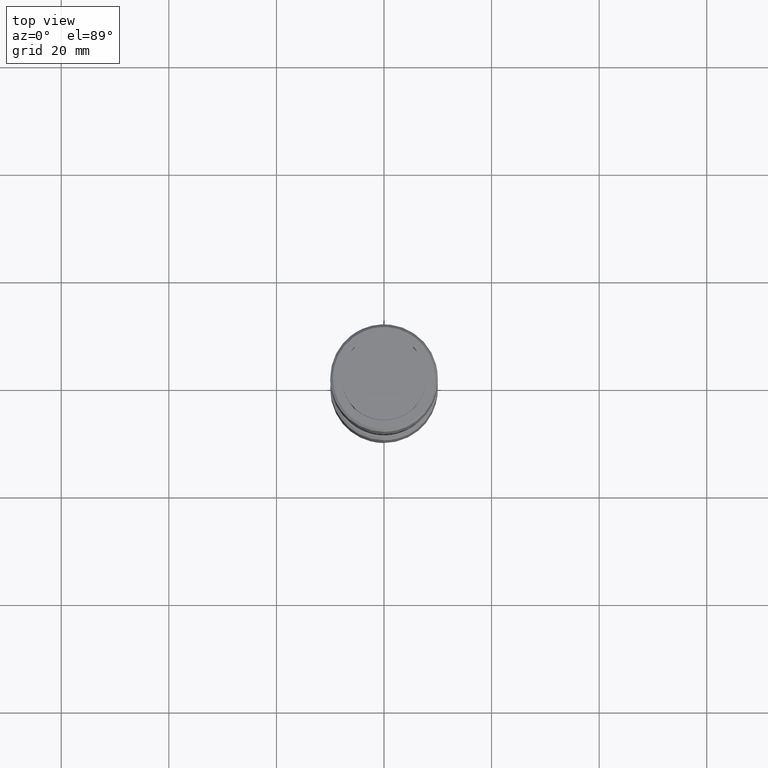
[diagram: clean part render]
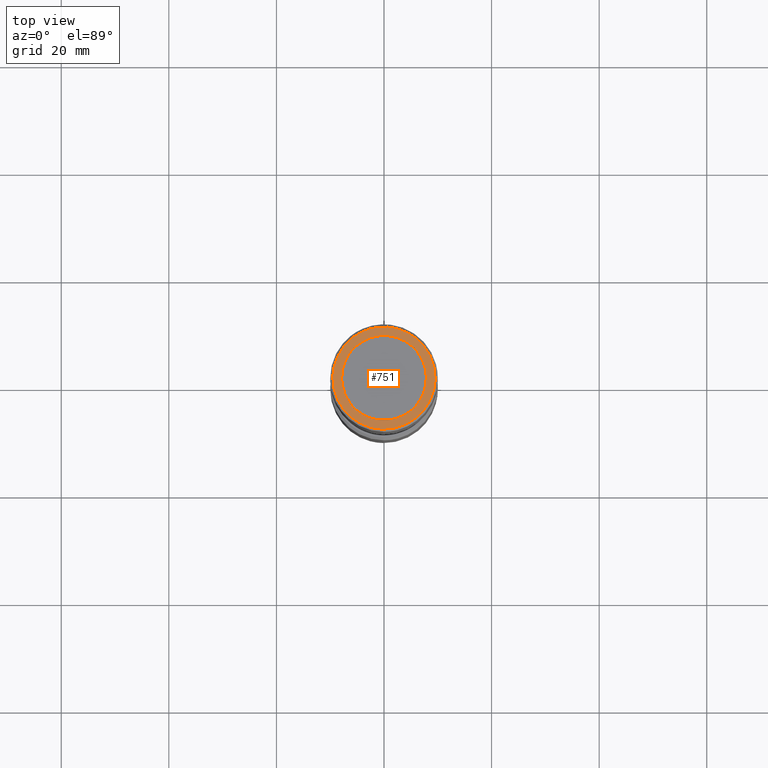
[diagram: same view with one face highlighted and labeled with its STEP entity id]
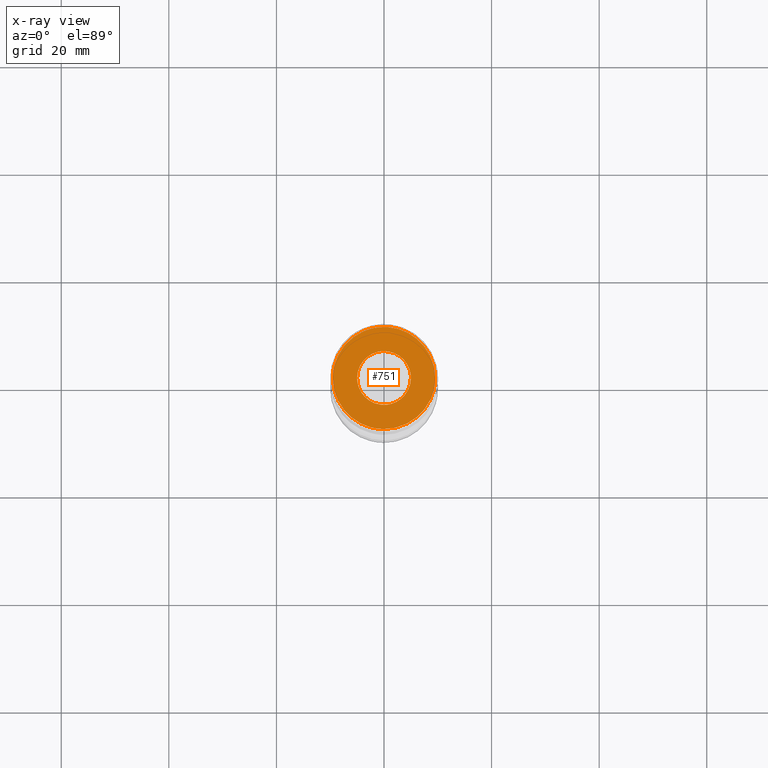
[diagram: x-ray of the same camera — body ghosted, the highlighted face saturated]
A machine part, top view. The second image highlights one B-rep face of the part: STEP entity #751.
The next image is the same camera in x-ray: the body ghosted, the highlighted face saturated — about 0% of this face is hidden behind the body in this view.
In plain terms, the highlighted face is a freeform B-spline surface patch.
Its self-contained STEP definition (entity closure, byte-faithful):
#85=CARTESIAN_POINT('',(-3.840046604013875,8.689306190900537,39.999999999988340));
#86=VERTEX_POINT('',#85);
#92=CARTESIAN_POINT('',(9.500000000000000,0.0,40.0));
#93=VERTEX_POINT('',#92);
#94=CARTESIAN_POINT('',(9.500000000000000,0.0,40.0));
#95=CARTESIAN_POINT('',(9.500000000000000,9.500000000000000,39.999999999999993));
#96=CARTESIAN_POINT('',(0.0,9.500000000000000,40.0));
#97=CARTESIAN_POINT('',(-2.005598364034912,9.500000000000000,40.0));
#98=CARTESIAN_POINT('',(-3.840046604013875,8.689306190900537,39.999999999988340));
#106=(BOUNDED_CURVE()B_SPLINE_CURVE(2,(#94,#95,#96,#97,#98),.UNSPECIFIED.,.F.,.U.)B_SPLINE_CURVE_WITH_KNOTS((3,2,3),(0.0,0.250000000000000,0.318638421544536),.UNSPECIFIED.)CURVE()GEOMETRIC_REPRESENTATION_ITEM()RATIONAL_B_SPLINE_CURVE((1.0,0.707106781186548,1.0,0.919585087118185,0.883326595747163))REPRESENTATION_ITEM(''));
#107=EDGE_CURVE('',#93,#86,#106,.T.);
#109=CARTESIAN_POINT('',(-0.082902087811878,-9.499638269183285,39.999999999921279));
#110=VERTEX_POINT('',#109);
#111=CARTESIAN_POINT('',(-0.082902087811878,-9.499638269183285,39.999999999921279));
#112=CARTESIAN_POINT('',(-0.041451833373337,-9.499999999999998,40.0));
#113=CARTESIAN_POINT('',(0.0,-9.500000000000000,40.0));
#114=CARTESIAN_POINT('',(9.500000000000000,-9.500000000000000,39.999999999999993));
#115=CARTESIAN_POINT('',(9.500000000000000,0.0,40.0));
#123=(BOUNDED_CURVE()B_SPLINE_CURVE(2,(#111,#112,#113,#114,#115),.UNSPECIFIED.,.F.,.U.)B_SPLINE_CURVE_WITH_KNOTS((3,2,3),(0.748460105643629,0.750000000000000,1.0),.UNSPECIFIED.)CURVE()GEOMETRIC_REPRESENTATION_ITEM()RATIONAL_B_SPLINE_CURVE((0.996414028050917,0.998195901541319,1.0,0.707106781186548,1.0))REPRESENTATION_ITEM(''));
#124=EDGE_CURVE('',#110,#93,#123,.T.);
#213=CARTESIAN_POINT('',(-9.500000000000000,0.0,40.0));
#214=VERTEX_POINT('',#213);
#215=CARTESIAN_POINT('',(-9.500000000000000,0.0,40.0));
#216=CARTESIAN_POINT('',(-9.500000000000000,-9.417456499508941,40.000000000000007));
#217=CARTESIAN_POINT('',(-0.082902087811878,-9.499638269183285,39.999999999921279));
#225=(BOUNDED_CURVE()B_SPLINE_CURVE(2,(#215,#216,#217),.UNSPECIFIED.,.F.,.U.)B_SPLINE_CURVE_WITH_KNOTS((3,3),(0.500000000000000,0.748460105643629),.UNSPECIFIED.)CURVE()GEOMETRIC_REPRESENTATION_ITEM()RATIONAL_B_SPLINE_CURVE((1.0,0.708910879645229,0.996414028050917))REPRESENTATION_ITEM(''));
#226=EDGE_CURVE('',#214,#110,#225,.T.);
#228=CARTESIAN_POINT('',(-3.840046604013875,8.689306190900537,39.999999999988340));
#229=CARTESIAN_POINT('',(-9.500000000000000,6.188015024426789,40.0));
#230=CARTESIAN_POINT('',(-9.500000000000000,0.0,40.0));
#238=(BOUNDED_CURVE()B_SPLINE_CURVE(2,(#228,#229,#230),.UNSPECIFIED.,.F.,.U.)B_SPLINE_CURVE_WITH_KNOTS((3,3),(0.318638421544536,0.500000000000000),.UNSPECIFIED.)CURVE()GEOMETRIC_REPRESENTATION_ITEM()RATIONAL_B_SPLINE_CURVE((0.883326595747163,0.787521694068363,1.0))REPRESENTATION_ITEM(''));
#239=EDGE_CURVE('',#86,#214,#238,.T.);
#586=CARTESIAN_POINT('',(-0.305242697984910,4.990673992090335,40.0));
#587=VERTEX_POINT('',#586);
#593=CARTESIAN_POINT('',(-5.0,0.0,40.0));
#594=VERTEX_POINT('',#593);
#595=CARTESIAN_POINT('',(-5.0,0.0,40.0));
#596=CARTESIAN_POINT('',(-5.0,4.703530333941859,39.999999999999993));
#597=CARTESIAN_POINT('',(-0.305242697984910,4.990673992090335,40.0));
#605=(BOUNDED_CURVE()B_SPLINE_CURVE(2,(#595,#596,#597),.UNSPECIFIED.,.F.,.U.)B_SPLINE_CURVE_WITH_KNOTS((3,3),(0.500000000000000,0.739332962220489),.UNSPECIFIED.)CURVE()GEOMETRIC_REPRESENTATION_ITEM()RATIONAL_B_SPLINE_CURVE((1.0,0.719603993308331,0.976072041627167))REPRESENTATION_ITEM(''));
#606=EDGE_CURVE('',#594,#587,#605,.T.);
#608=CARTESIAN_POINT('',(0.590171173576404,-4.965047631783550,40.0));
#609=VERTEX_POINT('',#608);
#610=CARTESIAN_POINT('',(0.590171173576404,-4.965047631783550,40.0));
#611=CARTESIAN_POINT('',(0.296120598555256,-5.000000000000001,39.999999999999993));
#612=CARTESIAN_POINT('',(0.0,-5.0,40.0));
#613=CARTESIAN_POINT('',(-5.000000000000001,-5.000000000000001,39.999999999999993));
#614=CARTESIAN_POINT('',(-5.0,0.0,40.0));
#622=(BOUNDED_CURVE()B_SPLINE_CURVE(2,(#610,#611,#612,#613,#614),.UNSPECIFIED.,.F.,.U.)B_SPLINE_CURVE_WITH_KNOTS((3,2,3),(0.229562473495724,0.250000000000000,0.500000000000000),.UNSPECIFIED.)CURVE()GEOMETRIC_REPRESENTATION_ITEM()RATIONAL_B_SPLINE_CURVE((0.956026754148841,0.976055948310310,1.0,0.707106781186548,1.0))REPRESENTATION_ITEM(''));
#623=EDGE_CURVE('',#609,#594,#622,.T.);
#667=CARTESIAN_POINT('',(5.0,0.0,40.0));
#668=VERTEX_POINT('',#667);
#669=CARTESIAN_POINT('',(5.0,0.0,40.0));
#670=CARTESIAN_POINT('',(5.0,-4.440872629229716,40.0));
#671=CARTESIAN_POINT('',(0.590171173576404,-4.965047631783550,40.0));
#679=(BOUNDED_CURVE()B_SPLINE_CURVE(2,(#669,#670,#671),.UNSPECIFIED.,.F.,.U.)B_SPLINE_CURVE_WITH_KNOTS((3,3),(0.0,0.229562473495724),.UNSPECIFIED.)CURVE()GEOMETRIC_REPRESENTATION_ITEM()RATIONAL_B_SPLINE_CURVE((1.0,0.731050832876238,0.956026754148841))REPRESENTATION_ITEM(''));
#680=EDGE_CURVE('',#668,#609,#679,.T.);
#682=CARTESIAN_POINT('',(-0.305242697984910,4.990673992090335,40.000000000000007));
#683=CARTESIAN_POINT('',(-0.152763816804441,4.999999999999999,39.999999999999993));
#684=CARTESIAN_POINT('',(0.0,5.0,40.0));
#685=CARTESIAN_POINT('',(5.000000000000001,5.000000000000001,39.999999999999993));
#686=CARTESIAN_POINT('',(5.0,0.0,40.0));
#694=(BOUNDED_CURVE()B_SPLINE_CURVE(2,(#682,#683,#684,#685,#686),.UNSPECIFIED.,.F.,.U.)B_SPLINE_CURVE_WITH_KNOTS((3,2,3),(0.739332962220489,0.750000000000000,1.0),.UNSPECIFIED.)CURVE()GEOMETRIC_REPRESENTATION_ITEM()RATIONAL_B_SPLINE_CURVE((0.976072041627168,0.987502787878218,1.0,0.707106781186548,1.0))REPRESENTATION_ITEM(''));
#695=EDGE_CURVE('',#587,#668,#694,.T.);
#734=CARTESIAN_POINT('',(-10.449049963174311,-10.448587236552450,40.0));
#735=CARTESIAN_POINT('',(10.449050472794029,-10.448587236552450,40.0));
#736=CARTESIAN_POINT('',(-10.449049963174311,10.447280231862280,40.0));
#737=CARTESIAN_POINT('',(10.449050472794029,10.447280231862280,40.0));
#738=B_SPLINE_SURFACE_WITH_KNOTS('',1,1,((#734,#736),(#735,#737)),.UNSPECIFIED.,.F.,.F.,.U.,(2,2),(2,2),(0.0,20.898100435968342),(0.0,20.895867468414739),.UNSPECIFIED.);
#739=ORIENTED_EDGE('',*,*,#107,.T.);
#740=ORIENTED_EDGE('',*,*,#239,.T.);
#741=ORIENTED_EDGE('',*,*,#226,.T.);
#742=ORIENTED_EDGE('',*,*,#124,.T.);
#743=EDGE_LOOP('',(#739,#740,#741,#742));
#744=FACE_OUTER_BOUND('',#743,.T.);
#745=ORIENTED_EDGE('',*,*,#606,.T.);
#746=ORIENTED_EDGE('',*,*,#695,.T.);
#747=ORIENTED_EDGE('',*,*,#680,.T.);
#748=ORIENTED_EDGE('',*,*,#623,.T.);
#749=EDGE_LOOP('',(#745,#746,#747,#748));
#750=FACE_BOUND('',#749,.T.);
#751=ADVANCED_FACE('',(#744,#750),#738,.T.);